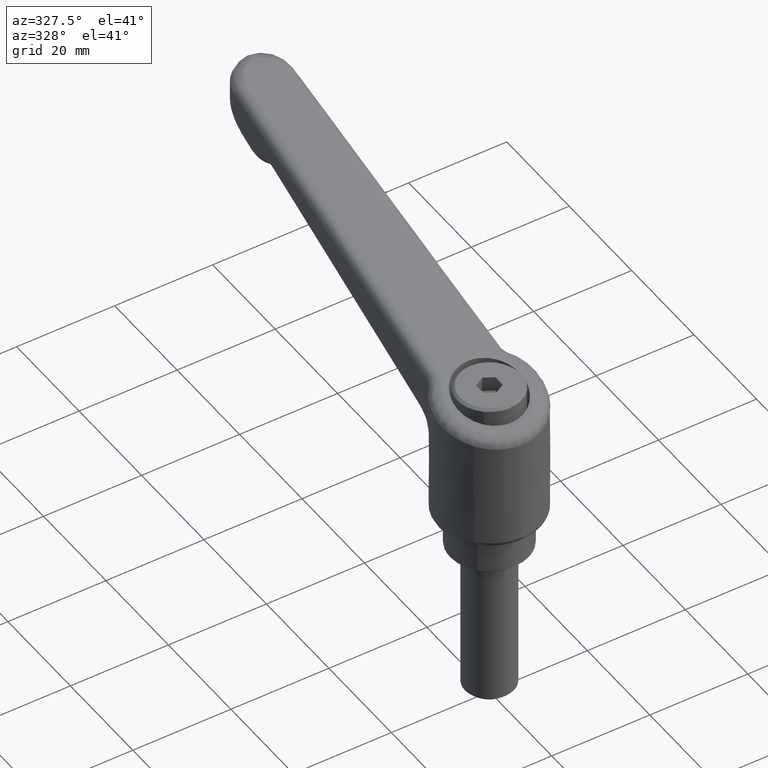
[diagram: clean part render]
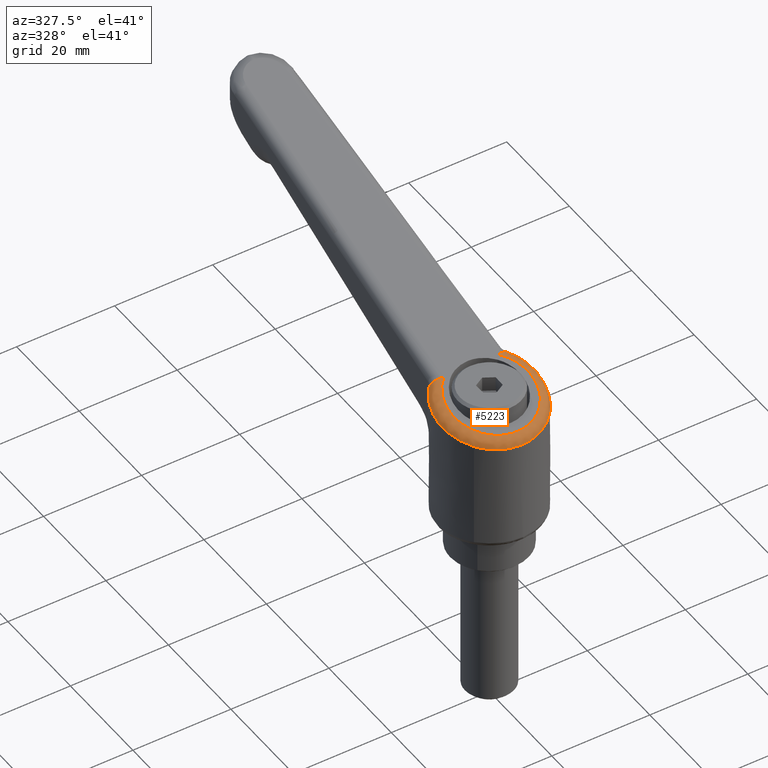
[diagram: same view with one face highlighted and labeled with its STEP entity id]
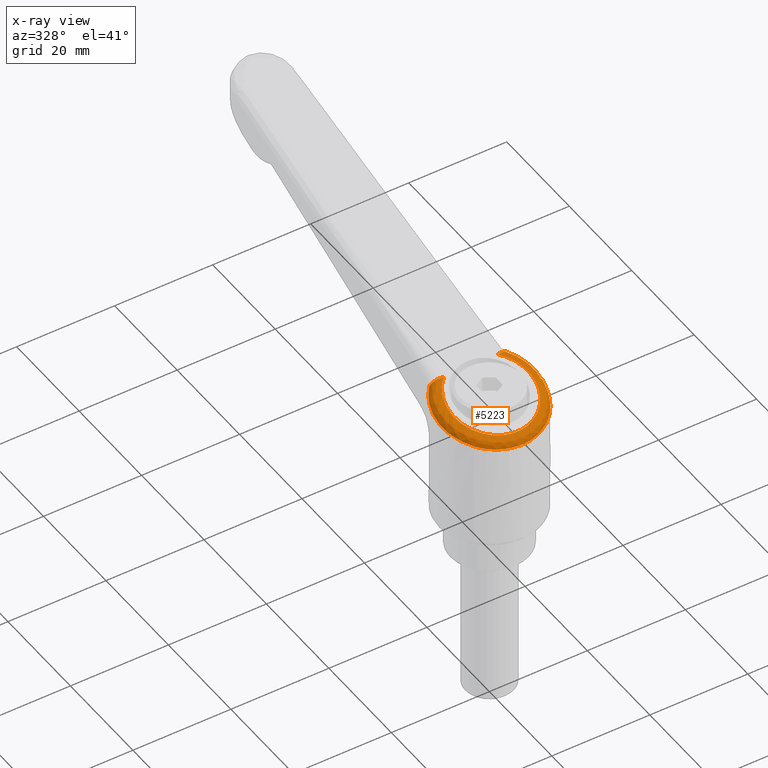
[diagram: x-ray of the same camera — body ghosted, the highlighted face saturated]
A machine part, auxiliary view. The second image highlights one B-rep face of the part: STEP entity #5223.
The next image is the same camera in x-ray: the body ghosted, the highlighted face saturated — about 0% of this face is hidden behind the body in this view.
In plain terms, the highlighted face is a freeform B-spline surface patch.
Its self-contained STEP definition (entity closure, byte-faithful):
#2183=CARTESIAN_POINT('',(-6.823606710889278,-7.980500702030341,22.891820902044099));
#2184=VERTEX_POINT('',#2183);
#2185=CARTESIAN_POINT('',(-7.139260589506565,7.699412849981324,22.822535343776028));
#2186=VERTEX_POINT('',#2185);
#2187=CARTESIAN_POINT('',(-6.823606710889279,-7.980500702030341,22.891820902044099));
#2188=CARTESIAN_POINT('',(-7.235869616191197,-7.628001575240655,22.801316240185322));
#2189=CARTESIAN_POINT('',(-7.609615610990944,-7.234898198714493,22.719267300027379));
#2190=CARTESIAN_POINT('',(-14.488248986314337,-0.000000585499973,21.209192045621776));
#2191=CARTESIAN_POINT('',(-7.609616733089972,7.234897048590815,22.719276806546301));
#2192=CARTESIAN_POINT('',(-7.381753625270392,7.474561882960712,22.769300211494858));
#2193=CARTESIAN_POINT('',(-7.139260589506565,7.699412849981324,22.822535343776028));
#2201=(BOUNDED_CURVE()B_SPLINE_CURVE(2,(#2187,#2188,#2189,#2190,#2191,#2192,#2193),.UNSPECIFIED.,.F.,.U.)B_SPLINE_CURVE_WITH_KNOTS((3,2,2,3),(0.308847889211876,0.333333333333333,0.666666666666667,0.681713560675306),.UNSPECIFIED.)CURVE()GEOMETRIC_REPRESENTATION_ITEM()RATIONAL_B_SPLINE_CURVE((0.962529331508985,0.979779329458571,1.0,0.724725290651227,1.0,0.987573911875510,0.976269667936728))REPRESENTATION_ITEM(''));
#2202=EDGE_CURVE('',#2184,#2186,#2201,.T.);
#2278=CARTESIAN_POINT('',(6.841752169418649,-7.964949921515840,25.891804639626351));
#2279=VERTEX_POINT('',#2278);
#2280=CARTESIAN_POINT('',(6.841752169418646,-7.964949921515839,25.891804639626379));
#2281=CARTESIAN_POINT('',(0.015736291271141,-13.828377740019169,24.393275636013197));
#2282=CARTESIAN_POINT('',(-6.823606710889278,-7.980500702030341,22.891820902044103));
#2290=(BOUNDED_CURVE()B_SPLINE_CURVE(2,(#2280,#2281,#2282),.UNSPECIFIED.,.F.,.U.)B_SPLINE_CURVE_WITH_KNOTS((3,3),(0.0,0.308847889211876),.UNSPECIFIED.)CURVE()GEOMETRIC_REPRESENTATION_ITEM()RATIONAL_B_SPLINE_CURVE((1.0,0.744945961192656,0.962529331508985))REPRESENTATION_ITEM(''));
#2291=EDGE_CURVE('',#2279,#2184,#2290,.T.);
#2351=CARTESIAN_POINT('',(6.841752169418649,7.964949921515840,25.891804639626351));
#2352=VERTEX_POINT('',#2351);
#2353=CARTESIAN_POINT('',(-7.139260589506565,7.699412849981324,22.822535343776028));
#2354=CARTESIAN_POINT('',(-0.267254429061213,14.071460713945985,24.331155404248406));
#2355=CARTESIAN_POINT('',(6.841752169418649,7.964949921515840,25.891804639626351));
#2363=(BOUNDED_CURVE()B_SPLINE_CURVE(2,(#2353,#2354,#2355),.UNSPECIFIED.,.F.,.U.)B_SPLINE_CURVE_WITH_KNOTS((3,3),(0.681713560675306,1.0),.UNSPECIFIED.)CURVE()GEOMETRIC_REPRESENTATION_ITEM()RATIONAL_B_SPLINE_CURVE((0.976269667936728,0.737151378775716,1.0))REPRESENTATION_ITEM(''));
#2364=EDGE_CURVE('',#2186,#2352,#2363,.T.);
#4490=CARTESIAN_POINT('',(6.815699914991670,-7.951187561158349,26.225580680634000));
#4491=VERTEX_POINT('',#4490);
#4500=CARTESIAN_POINT('',(6.841752169418649,-7.964949921515840,25.891804639626351));
#4501=CARTESIAN_POINT('',(6.853782152696591,-7.955134553336465,26.003104471438540));
#4502=CARTESIAN_POINT('',(6.844908609649165,-7.950430373614521,26.117063636672889));
#4503=CARTESIAN_POINT('',(6.815699914991670,-7.951187561158349,26.225580680634000));
#4504=B_SPLINE_CURVE_WITH_KNOTS('',3,(#4500,#4501,#4502,#4503),.UNSPECIFIED.,.F.,.U.,(4,4),(0.000000010436451,0.337115310552801),.UNSPECIFIED.);
#4505=EDGE_CURVE('',#2279,#4491,#4504,.T.);
#4580=CARTESIAN_POINT('',(5.940270675266100,-5.519973294428710,28.072980452360650));
#4581=VERTEX_POINT('',#4580);
#4618=CARTESIAN_POINT('',(6.815699914991670,-7.951187561158349,26.225580680634000));
#4619=CARTESIAN_POINT('',(6.776847164123269,-7.952224039955228,26.369502280352108));
#4620=CARTESIAN_POINT('',(6.735899683152852,-7.934386095575589,26.509252974808110));
#4621=CARTESIAN_POINT('',(6.671571994320859,-7.881070794717561,26.713022534366772));
#4622=CARTESIAN_POINT('',(6.649576278599209,-7.858748446168061,26.780148701766031));
#4623=CARTESIAN_POINT('',(6.604872637264183,-7.805249777314331,26.911581116659139));
#4624=CARTESIAN_POINT('',(6.582540020666011,-7.774548066162674,26.974800264596219));
#4625=CARTESIAN_POINT('',(6.537933703850105,-7.705781252450130,27.096595198035761));
#4626=CARTESIAN_POINT('',(6.515659963317729,-7.667713415129088,27.155169235526351));
#4627=CARTESIAN_POINT('',(6.471197899612150,-7.584456024922666,27.267837078720412));
#4628=CARTESIAN_POINT('',(6.448949981854497,-7.539133377237592,27.322069164379389));
#4629=CARTESIAN_POINT('',(6.382767467545852,-7.393338678804280,27.477178574877421));
#4630=CARTESIAN_POINT('',(6.340532647239538,-7.285762016298755,27.567924787307671));
#4631=CARTESIAN_POINT('',(6.279876199056705,-7.110750715467771,27.687504574675700));
#4632=CARTESIAN_POINT('',(6.260110700337241,-7.050117384920137,27.724581295196700));
#4633=CARTESIAN_POINT('',(6.221505207759942,-6.924369251863543,27.793322550541589));
#4634=CARTESIAN_POINT('',(6.202857041723497,-6.859863055740397,27.824638255258758));
#4635=CARTESIAN_POINT('',(6.149175302800781,-6.663166666854674,27.909498088157680));
#4636=CARTESIAN_POINT('',(6.116210469173950,-6.527234955274309,27.954336881123020));
#4637=CARTESIAN_POINT('',(6.070795398181867,-6.316850520976558,28.005893778653121));
#4638=CARTESIAN_POINT('',(6.056290744144198,-6.245400266583697,28.020476353136370));
#4639=CARTESIAN_POINT('',(6.028931231890466,-6.101986151931793,28.044295752354909));
#4640=CARTESIAN_POINT('',(6.016052820796225,-6.029943516164621,28.053572554525189));
#4641=CARTESIAN_POINT('',(5.991825097841295,-5.885227606704326,28.067226219474119));
#4642=CARTESIAN_POINT('',(5.980476040663701,-5.812554218011097,28.071602138725151));
#4643=CARTESIAN_POINT('',(5.964562484715478,-5.703092606344508,28.074689215042529));
#4644=CARTESIAN_POINT('',(5.959443134309769,-5.666530067408090,28.075138084723509));
#4645=CARTESIAN_POINT('',(5.949570309689786,-5.593257056970700,28.074901289362341));
#4646=CARTESIAN_POINT('',(5.944791668683920,-5.556293143372955,28.074206485211288));
#4647=CARTESIAN_POINT('',(5.940270675266100,-5.519973294428710,28.072980452360650));
#4648=B_SPLINE_CURVE_WITH_KNOTS('',3,(#4618,#4619,#4620,#4621,#4622,#4623,#4624,#4625,#4626,#4627,#4628,#4629,#4630,#4631,#4632,#4633,#4634,#4635,#4636,#4637,#4638,#4639,#4640,#4641,#4642,#4643,#4644,#4645,#4646,#4647),.UNSPECIFIED.,.F.,.U.,(4,2,2,2,2,2,2,2,2,2,2,2,2,2,4),(0.0,0.124999999999996,0.187499999999996,0.249999999999996,0.312499999999995,0.374999999999995,0.499999999999995,0.562499999999996,0.624999999999997,0.749999999999998,0.812499999999998,0.874999999999999,0.937499999999999,0.968750000000000,1.0),.UNSPECIFIED.);
#4649=EDGE_CURVE('',#4491,#4581,#4648,.T.);
#4737=CARTESIAN_POINT('',(6.815699914991621,7.951187561158400,26.225580680633950));
#4738=VERTEX_POINT('',#4737);
#4757=CARTESIAN_POINT('',(6.815699914991621,7.951187561158400,26.225580680633950));
#4758=CARTESIAN_POINT('',(6.844584194028115,7.950518681924687,26.116999662675060));
#4759=CARTESIAN_POINT('',(6.853450797864499,7.955219489020862,26.003124545526578));
#4760=CARTESIAN_POINT('',(6.841752169418649,7.964949921515840,25.891804639626351));
#4761=B_SPLINE_CURVE_WITH_KNOTS('',3,(#4757,#4758,#4759,#4760),.UNSPECIFIED.,.F.,.U.,(4,4),(9.789436E-009,0.337050919251190),.UNSPECIFIED.);
#4762=EDGE_CURVE('',#4738,#2352,#4761,.T.);
#4829=CARTESIAN_POINT('',(5.940270675266040,5.519973294428770,28.072980452360650));
#4830=VERTEX_POINT('',#4829);
#4831=CARTESIAN_POINT('',(5.940270675266060,5.519973294428730,28.072980452360650));
#4832=CARTESIAN_POINT('',(5.944791668684234,5.556293143372976,28.074206485211398));
#4833=CARTESIAN_POINT('',(5.949570309690695,5.593257056970640,28.074901289362579));
#4834=CARTESIAN_POINT('',(5.959443134310202,5.666530067408091,28.075138084723601));
#4835=CARTESIAN_POINT('',(5.964562484715880,5.703092606344514,28.074689215042600));
#4836=CARTESIAN_POINT('',(5.980476040663914,5.812554218011131,28.071602138725190));
#4837=CARTESIAN_POINT('',(5.991825097841465,5.885227606704362,28.067226219474140));
#4838=CARTESIAN_POINT('',(6.016052820796337,6.029943516164671,28.053572554525200));
#4839=CARTESIAN_POINT('',(6.028931231890555,6.101986151931844,28.044295752354909));
#4840=CARTESIAN_POINT('',(6.056290744144259,6.245400266583751,28.020476353136370));
#4841=CARTESIAN_POINT('',(6.070795398181920,6.316850520976605,28.005893778653121));
#4842=CARTESIAN_POINT('',(6.116210469173979,6.527234955274365,27.954336881123020));
#4843=CARTESIAN_POINT('',(6.149175302800795,6.663166666854728,27.909498088157651));
#4844=CARTESIAN_POINT('',(6.202857041723500,6.859863055740454,27.824638255258730));
#4845=CARTESIAN_POINT('',(6.221505207759944,6.924369251863593,27.793322550541561));
#4846=CARTESIAN_POINT('',(6.260110700337241,7.050117384920194,27.724581295196678));
#4847=CARTESIAN_POINT('',(6.279876199056694,7.110750715467829,27.687504574675661));
#4848=CARTESIAN_POINT('',(6.340532647239519,7.285762016298810,27.567924787307639));
#4849=CARTESIAN_POINT('',(6.382767467545826,7.393338678804339,27.477178574877382));
#4850=CARTESIAN_POINT('',(6.448949981854463,7.539133377237647,27.322069164379339));
#4851=CARTESIAN_POINT('',(6.471197899612124,7.584456024922723,27.267837078720358));
#4852=CARTESIAN_POINT('',(6.515659963317700,7.667713415129143,27.155169235526309));
#4853=CARTESIAN_POINT('',(6.537933703850073,7.705781252450183,27.096595198035729));
#4854=CARTESIAN_POINT('',(6.582540020665978,7.774548066162727,26.974800264596180));
#4855=CARTESIAN_POINT('',(6.604872637264151,7.805249777314391,26.911581116659100));
#4856=CARTESIAN_POINT('',(6.649576278599171,7.858748446168113,26.780148701765992));
#4857=CARTESIAN_POINT('',(6.671571994320817,7.881070794717614,26.713022534366729));
#4858=CARTESIAN_POINT('',(6.735899683152808,7.934386095575641,26.509252974808060));
#4859=CARTESIAN_POINT('',(6.776847164123224,7.952224039955278,26.369502280352059));
#4860=CARTESIAN_POINT('',(6.815699914991621,7.951187561158400,26.225580680633950));
#4861=B_SPLINE_CURVE_WITH_KNOTS('',3,(#4831,#4832,#4833,#4834,#4835,#4836,#4837,#4838,#4839,#4840,#4841,#4842,#4843,#4844,#4845,#4846,#4847,#4848,#4849,#4850,#4851,#4852,#4853,#4854,#4855,#4856,#4857,#4858,#4859,#4860),.UNSPECIFIED.,.F.,.U.,(4,2,2,2,2,2,2,2,2,2,2,2,2,2,4),(0.0,0.031250000000000,0.062499999999999,0.124999999999999,0.187499999999998,0.249999999999998,0.374999999999997,0.437499999999996,0.499999999999996,0.624999999999996,0.687499999999997,0.749999999999998,0.812499999999998,0.874999999999999,1.0),.UNSPECIFIED.);
#4862=EDGE_CURVE('',#4830,#4738,#4861,.T.);
#5017=CARTESIAN_POINT('',(6.087272133174312,-5.318859218443690,28.112845278480297));
#5018=CARTESIAN_POINT('',(5.541237982335054,-5.997603447734540,27.964768131570839));
#5019=CARTESIAN_POINT('',(4.889981095822056,-6.591496749224223,27.788155988334374));
#5020=CARTESIAN_POINT('',(3.437714578851642,-7.554168827809096,27.394320763825768));
#5021=CARTESIAN_POINT('',(2.636956425221716,-7.922779287702228,27.177165879700318));
#5022=CARTESIAN_POINT('',(0.961054456567491,-8.399990468944509,26.722683716566571));
#5023=CARTESIAN_POINT('',(0.086160224842652,-8.508531612435252,26.485424121205625));
#5024=CARTESIAN_POINT('',(-1.655665419118739,-8.455255694001551,26.013064340457198));
#5025=CARTESIAN_POINT('',(-2.522343363861690,-8.293455274795473,25.778032892058480));
#5026=CARTESIAN_POINT('',(-4.166116374111649,-7.714614599796692,25.332263672037104));
#5027=CARTESIAN_POINT('',(-4.942975260955446,-7.297664431681922,25.121589948904028));
#5028=CARTESIAN_POINT('',(-6.333915106481561,-6.247690003913069,24.744385696145041));
#5029=CARTESIAN_POINT('',(-6.947797373104655,-5.614821280476622,24.577909049143791));
#5030=CARTESIAN_POINT('',(-7.954914138265920,-4.192533540051497,24.304792473998130));
#5031=CARTESIAN_POINT('',(-8.348005080550003,-3.403321936393172,24.198191476386658));
#5032=CARTESIAN_POINT('',(-8.876448608036396,-1.742621748764200,24.054884670882462));
#5033=CARTESIAN_POINT('',(-9.011725910477443,-0.871373950045302,24.018199278666067));
#5034=CARTESIAN_POINT('',(-9.011725910477443,0.871373950045256,24.018199278666067));
#5035=CARTESIAN_POINT('',(-8.876448608037132,1.742621748764326,24.054884670882252));
#5036=CARTESIAN_POINT('',(-8.348005080549310,3.403321936392912,24.198191476386850));
#5037=CARTESIAN_POINT('',(-7.954914138264846,4.192533540051848,24.304792473998390));
#5038=CARTESIAN_POINT('',(-6.947797373105783,5.614821280476194,24.577909049143518));
#5039=CARTESIAN_POINT('',(-6.333915106481607,6.247690003913013,24.744385696144992));
#5040=CARTESIAN_POINT('',(-4.942975260955507,7.297664431681889,25.121589948904035));
#5041=CARTESIAN_POINT('',(-4.166116374111583,7.714614599796641,25.332263672037161));
#5042=CARTESIAN_POINT('',(-2.522343363861994,8.293455274795452,25.778032892058398));
#5043=CARTESIAN_POINT('',(-1.655665419118812,8.455255694001547,26.013064340457166));
#5044=CARTESIAN_POINT('',(0.086160224842570,8.508531612435247,26.485424121205615));
#5045=CARTESIAN_POINT('',(0.961054456567116,8.399990468944827,26.722683716566483));
#5046=CARTESIAN_POINT('',(2.636956425221976,7.922779287701945,27.177165879700379));
#5047=CARTESIAN_POINT('',(3.437714578852154,7.554168827808967,27.394320763825895));
#5048=CARTESIAN_POINT('',(4.889981095821498,6.591496749224385,27.788155988334239));
#5049=CARTESIAN_POINT('',(5.541237982335204,5.997603447734476,27.964768131570882));
#5050=CARTESIAN_POINT('',(6.087272133174254,5.318859218443771,28.112845278480304));
#5051=CARTESIAN_POINT('',(6.093009679348833,-5.323815653004942,28.114401224141368));
#5052=CARTESIAN_POINT('',(5.546434388338167,-6.003146659889076,27.966177327266621));
#5053=CARTESIAN_POINT('',(4.894556475300028,-6.597510038120559,27.789396769955992));
#5054=CARTESIAN_POINT('',(3.440971711902281,-7.560882559730302,27.395204054675784));
#5055=CARTESIAN_POINT('',(2.639513618497773,-7.929717650485276,27.177859356260022));
#5056=CARTESIAN_POINT('',(0.962212324116656,-8.407146365661602,26.722997714734856));
#5057=CARTESIAN_POINT('',(0.086619230229655,-8.515674530976956,26.485548597317656));
#5058=CARTESIAN_POINT('',(-1.656545866143524,-8.462168809407489,26.012825575018731));
#5059=CARTESIAN_POINT('',(-2.523860899321239,-8.300147242559133,25.777621356771110));
#5060=CARTESIAN_POINT('',(-4.168808027056232,-7.720696730283811,25.331533731816553));
#5061=CARTESIAN_POINT('',(-4.946199135323719,-7.303356123236049,25.120715677363137));
#5062=CARTESIAN_POINT('',(-6.338074086965078,-6.252472887463024,24.743257836352544));
#5063=CARTESIAN_POINT('',(-6.952354595240910,-5.619086544213309,24.576673191550025));
#5064=CARTESIAN_POINT('',(-7.960118865175093,-4.195676407671290,24.303381021784070));
#5065=CARTESIAN_POINT('',(-8.353455557397910,-3.405862671344627,24.196713380081352));
#5066=CARTESIAN_POINT('',(-8.882229708658860,-1.743912322799472,24.053316913838589));
#5067=CARTESIAN_POINT('',(-9.017590021056391,-0.872020275641043,24.016609010434003));
#5068=CARTESIAN_POINT('',(-9.017590021056391,0.872020275640998,24.016609010434003));
#5069=CARTESIAN_POINT('',(-8.882229708659589,1.743912322799595,24.053316913838373));
#5070=CARTESIAN_POINT('',(-8.353455557397217,3.405862671344368,24.196713380081523));
#5071=CARTESIAN_POINT('',(-7.960118865174024,4.195676407671640,24.303381021784354));
#5072=CARTESIAN_POINT('',(-6.952354595242035,5.619086544212881,24.576673191549730));
#5073=CARTESIAN_POINT('',(-6.338074086965129,6.252472887462975,24.743257836352516));
#5074=CARTESIAN_POINT('',(-4.946199135323774,7.303356123236006,25.120715677363112));
#5075=CARTESIAN_POINT('',(-4.168808027056162,7.720696730283761,25.331533731816574));
#5076=CARTESIAN_POINT('',(-2.523860899321539,8.300147242559094,25.777621356771011));
#5077=CARTESIAN_POINT('',(-1.656545866143600,8.462168809407491,26.012825575018720));
#5078=CARTESIAN_POINT('',(0.086619230229574,8.515674530976948,26.485548597317624));
#5079=CARTESIAN_POINT('',(0.962212324116278,8.407146365661919,26.722997714734763));
#5080=CARTESIAN_POINT('',(2.639513618498040,7.929717650485000,27.177859356260118));
#5081=CARTESIAN_POINT('',(3.440971711902797,7.560882559730175,27.395204054675936));
#5082=CARTESIAN_POINT('',(4.894556475299464,6.597510038120719,27.789396769955840));
#5083=CARTESIAN_POINT('',(5.546434388338322,6.003146659889011,27.966177327266674));
#5084=CARTESIAN_POINT('',(6.093009679348771,5.323815653005019,28.114401224141350));
#5085=CARTESIAN_POINT('',(7.921974900712178,-6.903784887021387,28.610392090939538));
#5086=CARTESIAN_POINT('',(7.185452466226240,-7.751552178128264,28.410657073326945));
#5087=CARTESIAN_POINT('',(6.320020016390012,-8.470955535927416,28.175963386465529));
#5088=CARTESIAN_POINT('',(4.429336402305293,-9.598139088275161,27.663235318353195));
#5089=CARTESIAN_POINT('',(3.404708985538741,-10.005901373533685,27.385370089069976));
#5090=CARTESIAN_POINT('',(1.299106839280806,-10.489234560298657,26.814358994131332));
#5091=CARTESIAN_POINT('',(0.218310467803732,-10.565018197268790,26.521261496781324));
#5092=CARTESIAN_POINT('',(-1.902462662981218,-10.393064307872100,25.946136234074437));
#5093=CARTESIAN_POINT('',(-2.942321491891410,-10.145458189475852,25.664140449858312));
#5094=CARTESIAN_POINT('',(-4.893800949133095,-9.358909993693699,25.134925363521315));
#5095=CARTESIAN_POINT('',(-5.805294608306088,-8.820073553630666,24.887740493731229));
#5096=CARTESIAN_POINT('',(-7.425862890459417,-7.503444656789224,24.448264085110100));
#5097=CARTESIAN_POINT('',(-8.134804506649683,-6.725782811541864,24.256008615946126));
#5098=CARTESIAN_POINT('',(-9.293275851877384,-5.000701531703042,23.941846706264435));
#5099=CARTESIAN_POINT('',(-9.742694760609030,-4.053455294527199,23.819970318735315));
#5100=CARTESIAN_POINT('',(-10.346088096584573,-2.070704356037967,23.656338129214841));
#5101=CARTESIAN_POINT('',(-10.500000000000002,-1.035407288876002,23.614599282846953));
#5102=CARTESIAN_POINT('',(-10.500000000000002,1.035407288875948,23.614599282846953));
#5103=CARTESIAN_POINT('',(-10.346088096583834,2.070704356037507,23.656338129216355));
#5104=CARTESIAN_POINT('',(-9.742694760609812,4.053455294527498,23.819970318733805));
#5105=CARTESIAN_POINT('',(-9.293275851875888,5.000701531702227,23.941846706267494));
#5106=CARTESIAN_POINT('',(-8.134804506651250,6.725782811542582,24.256008615943049));
#5107=CARTESIAN_POINT('',(-7.425862890460256,7.503444656790721,24.448264085111639));
#5108=CARTESIAN_POINT('',(-5.805294608305378,8.820073553629063,24.887740493729659));
#5109=CARTESIAN_POINT('',(-4.893800949133619,9.358909993695987,25.134925363519717));
#5110=CARTESIAN_POINT('',(-2.942321491891157,10.145458189473452,25.664140449859850));
#5111=CARTESIAN_POINT('',(-1.902462662981605,10.393064307872095,25.946136234074416));
#5112=CARTESIAN_POINT('',(0.218310467803928,10.565018197268783,26.521261496781307));
#5113=CARTESIAN_POINT('',(1.299106839279755,10.489234560300559,26.814358994130650));
#5114=CARTESIAN_POINT('',(3.404708985539649,10.005901373531819,27.385370089070637));
#5115=CARTESIAN_POINT('',(4.429336402306480,9.598139088273335,27.663235318352754));
#5116=CARTESIAN_POINT('',(6.320020016388761,8.470955535929280,28.175963386465966));
#5117=CARTESIAN_POINT('',(7.185452466226708,7.751552178126577,28.410657073325520));
#5118=CARTESIAN_POINT('',(7.921974900712097,6.903784887021485,28.610392090939516));
#5119=CARTESIAN_POINT('',(8.181221319828982,-6.581612218963818,26.178047493651540));
#5120=CARTESIAN_POINT('',(7.505566790590287,-7.421481609935048,26.029757850302797));
#5121=CARTESIAN_POINT('',(6.699742978707557,-8.156309560575288,25.852901643724493));
#5122=CARTESIAN_POINT('',(4.902844870779523,-9.347408756796675,25.458542272081001));
#5123=CARTESIAN_POINT('',(3.912075553438372,-9.803456033194417,25.241107383902776));
#5124=CARTESIAN_POINT('',(1.838538671386085,-10.393837642692700,24.786061161395917));
#5125=CARTESIAN_POINT('',(0.756077863124630,-10.528084052802226,24.548517680806821));
#5126=CARTESIAN_POINT('',(-1.398975194563702,-10.462078135039144,24.075610575315324));
#5127=CARTESIAN_POINT('',(-2.471247798719502,-10.261833985823454,23.840316654244848));
#5128=CARTESIAN_POINT('',(-4.504959910427480,-9.545556197882513,23.394061744483597));
#5129=CARTESIAN_POINT('',(-5.466096133052503,-9.029627011140768,23.183166118884120));
#5130=CARTESIAN_POINT('',(-7.186987819242848,-7.730432174854028,22.805571119396429));
#5131=CARTESIAN_POINT('',(-7.946485067529926,-6.947358599413168,22.638926894495722));
#5132=CARTESIAN_POINT('',(-9.192503501916324,-5.187513804617357,22.365537728392781));
#5133=CARTESIAN_POINT('',(-9.678836734580880,-4.211004875383559,22.258832675158615));
#5134=CARTESIAN_POINT('',(-10.332634466320268,-2.156179394901450,22.115386047963735));
#5135=CARTESIAN_POINT('',(-10.500000000000004,-1.078170552713548,22.078665397515611));
#5136=CARTESIAN_POINT('',(-10.500000000000012,1.078170552713492,22.078665397515611));
#5137=CARTESIAN_POINT('',(-10.332634466320309,2.156179394901317,22.115386047963710));
#5138=CARTESIAN_POINT('',(-9.678836734580894,4.211004875383521,22.258832675158597));
#5139=CARTESIAN_POINT('',(-9.192503501916105,5.187513804617672,22.365537728394305));
#5140=CARTESIAN_POINT('',(-7.946485067530221,6.947358599412762,22.638926894494201));
#5141=CARTESIAN_POINT('',(-7.186987819242905,7.730432174853958,22.805571119396404));
#5142=CARTESIAN_POINT('',(-5.466096133052578,9.029627011140724,23.183166118884106));
#5143=CARTESIAN_POINT('',(-4.504959910427369,9.545556197882526,23.394061744483562));
#5144=CARTESIAN_POINT('',(-2.471247798719900,10.261833985823346,23.840316654244816));
#5145=CARTESIAN_POINT('',(-1.398975194563818,10.462078135039123,24.075610575315295));
#5146=CARTESIAN_POINT('',(0.756077863124554,10.528084052802228,24.548517680806796));
#5147=CARTESIAN_POINT('',(1.838538671385596,10.393837642692828,24.786061161395697));
#5148=CARTESIAN_POINT('',(3.912075553438721,9.803456033194333,25.241107383902957));
#5149=CARTESIAN_POINT('',(4.902844870780071,9.347408756796314,25.458542272081022));
#5150=CARTESIAN_POINT('',(6.699742978706949,8.156309560575684,25.852901643724454));
#5151=CARTESIAN_POINT('',(7.505566790590413,7.421481609934869,26.029757850302957));
#5152=CARTESIAN_POINT('',(8.181221319828907,6.581612218963914,26.178047493651523));
#5153=CARTESIAN_POINT('',(8.182032073228299,-6.580604673375779,26.170440709120868));
#5154=CARTESIAN_POINT('',(7.506578555506461,-7.420438376954373,26.022232694071178));
#5155=CARTESIAN_POINT('',(6.700958025311170,-8.155302748868767,25.845468255279158));
#5156=CARTESIAN_POINT('',(4.904400481282602,-9.346585036075602,25.451299225995932));
#5157=CARTESIAN_POINT('',(3.913765868969910,-9.802781577042362,25.233963672070796));
#5158=CARTESIAN_POINT('',(1.840386901193314,-10.393510788739814,24.779111700334685));
#5159=CARTESIAN_POINT('',(0.757946434525294,-10.527955718346355,24.541663020767093));
#5160=CARTESIAN_POINT('',(-1.397178154442541,-10.462324458183444,24.068934322444502));
#5161=CARTESIAN_POINT('',(-2.469544749967298,-10.262254713318178,23.833723076882372));
#5162=CARTESIAN_POINT('',(-4.503520743718894,-9.546247007176314,23.387618512634802));
#5163=CARTESIAN_POINT('',(-5.464827184027211,-9.030410955276881,23.176789268310479));
#5164=CARTESIAN_POINT('',(-7.186077347349874,-7.731297337360098,22.799309998190083));
#5165=CARTESIAN_POINT('',(-7.945761521891154,-6.948209919891411,22.632713874572932));
#5166=CARTESIAN_POINT('',(-9.192111298620917,-5.188240872995631,22.359402775938580));
#5167=CARTESIAN_POINT('',(-9.678586972729677,-4.211621084142540,22.252726745300052));
#5168=CARTESIAN_POINT('',(-10.332581499484695,-2.156515909451121,22.109319331848937));
#5169=CARTESIAN_POINT('',(-10.499999999999995,-1.078339191599554,22.072608372018546));
#5170=CARTESIAN_POINT('',(-10.500000000000004,1.078339191599498,22.072608372018546));
#5171=CARTESIAN_POINT('',(-10.332581499484736,2.156515909450990,22.109319331848912));
#5172=CARTESIAN_POINT('',(-9.678586972729693,4.211621084142505,22.252726745300055));
#5173=CARTESIAN_POINT('',(-9.192111298620695,5.188240872995947,22.359402775940072));
#5174=CARTESIAN_POINT('',(-7.945761521891434,6.948209919890992,22.632713874571394));
#5175=CARTESIAN_POINT('',(-7.186077347349934,7.731297337360027,22.799309998190054));
#5176=CARTESIAN_POINT('',(-5.464827184027291,9.030410955276849,23.176789268310472));
#5177=CARTESIAN_POINT('',(-4.503520743718786,9.546247007176326,23.387618512634798));
#5178=CARTESIAN_POINT('',(-2.469544749967699,10.262254713318081,23.833723076882325));
#5179=CARTESIAN_POINT('',(-1.397178154442657,10.462324458183421,24.068934322444470));
#5180=CARTESIAN_POINT('',(0.757946434525219,10.527955718346366,24.541663020767075));
#5181=CARTESIAN_POINT('',(1.840386901192826,10.393510788739931,24.779111700334479));
#5182=CARTESIAN_POINT('',(3.913765868970257,9.802781577042286,25.233963672070967));
#5183=CARTESIAN_POINT('',(4.904400481283149,9.346585036075249,25.451299225995960));
#5184=CARTESIAN_POINT('',(6.700958025310571,8.155302748869170,25.845468255279147));
#5185=CARTESIAN_POINT('',(7.506578555506597,7.420438376954208,26.022232694071366));
#5186=CARTESIAN_POINT('',(8.182032073228225,6.580604673375873,26.170440709120847));
#5194=(BOUNDED_SURFACE()B_SPLINE_SURFACE(3,2,((#5017,#5051,#5085,#5119,#5153),(#5018,#5052,#5086,#5120,#5154),(#5019,#5053,#5087,#5121,#5155),(#5020,#5054,#5088,#5122,#5156),(#5021,#5055,#5089,#5123,#5157),(#5022,#5056,#5090,#5124,#5158),(#5023,#5057,#5091,#5125,#5159),(#5024,#5058,#5092,#5126,#5160),(#5025,#5059,#5093,#5127,#5161),(#5026,#5060,#5094,#5128,#5162),(#5027,#5061,#5095,#5129,#5163),(#5028,#5062,#5096,#5130,#5164),(#5029,#5063,#5097,#5131,#5165),(#5030,#5064,#5098,#5132,#5166),(#5031,#5065,#5099,#5133,#5167),(#5032,#5066,#5100,#5134,#5168),(#5033,#5067,#5101,#5135,#5169),(#5034,#5068,#5102,#5136,#5170),(#5035,#5069,#5103,#5137,#5171),(#5036,#5070,#5104,#5138,#5172),(#5037,#5071,#5105,#5139,#5173),(#5038,#5072,#5106,#5140,#5174),(#5039,#5073,#5107,#5141,#5175),(#5040,#5074,#5108,#5142,#5176),(#5041,#5075,#5109,#5143,#5177),(#5042,#5076,#5110,#5144,#5178),(#5043,#5077,#5111,#5145,#5179),(#5044,#5078,#5112,#5146,#5180),(#5045,#5079,#5113,#5147,#5181),(#5046,#5080,#5114,#5148,#5182),(#5047,#5081,#5115,#5149,#5183),(#5048,#5082,#5116,#5150,#5184),(#5049,#5083,#5117,#5151,#5185),(#5050,#5084,#5118,#5152,#5186)),.UNSPECIFIED.,.F.,.F.,.U.)B_SPLINE_SURFACE_WITH_KNOTS((4,2,2,2,2,2,2,2,2,2,2,2,2,2,2,2,4),(3,1,1,3),(0.0,3.310586864433216,6.621173728866421,9.931760593299636,13.242347457732849,16.552934322166060,19.863521186599272,23.174108051032491,26.484694915465699,29.795281779898900,33.105868644332112,36.416455508765331,39.727042373198543,43.037629237631741,46.348216102064953,49.658802966498172,52.969389830931377),(0.0,0.019088709665315,3.824865338431332,3.843894518796309),.UNSPECIFIED.)GEOMETRIC_REPRESENTATION_ITEM()RATIONAL_B_SPLINE_SURFACE(((1.003702534253673,1.001851267126836,0.630906997463633,1.001845493837875,1.003690987675750),(1.003635590344531,1.001817795172266,0.637580407277984,1.001812126267627,1.003624252535255),(1.003556797057453,1.001778398528726,0.645435041135515,1.001772852484913,1.003545704969827),(1.003385005263633,1.001692502631817,0.662560378714504,1.001687224459575,1.003374448919149),(1.003292036683169,1.001646018341585,0.671828099187599,1.001640885133424,1.003281770266849),(1.003101766114944,1.001550883057472,0.690795522716764,1.001546046534473,1.003092093068946),(1.003004493579919,1.001502246789959,0.700492289730071,1.001497561942114,1.002995123884229),(1.002814740769365,1.001407370384683,0.719408099764078,1.001402981414669,1.002805962829338),(1.002722274359727,1.001361137179863,0.728625760541533,1.001356892390907,1.002713784781814),(1.002549846127217,1.001274923063608,0.745814542521304,1.001270947138609,1.002541894277219),(1.002469889190291,1.001234944595145,0.753785176660442,1.001231093345428,1.002462186690856),(1.002328522509562,1.001164261254781,0.767877538560118,1.001160630435353,1.002321260870707),(1.002267113591914,1.001133556795957,0.773999183964171,1.001130021730249,1.002260043460497),(1.002167147199970,1.001083573599985,0.783964492379281,1.001080194409909,1.002160388819817),(1.002128589255057,1.001064294627528,0.787808202304613,1.001060975560098,1.002121951120197),(1.002076894504286,1.001038447252143,0.792961475568269,1.001035208791323,1.002070417582646),(1.002063757223625,1.001031878611813,0.794271086238181,1.001028660635696,1.002057321271393),(1.002063757223625,1.001031878611813,0.794271086238181,1.001028660635696,1.002057321271393),(1.002076894504283,1.001038447252142,0.792961475568561,1.001035208791322,1.002070417582643),(1.002128589255060,1.001064294627530,0.787808202304321,1.001060975560100,1.002121951120200),(1.002167147199969,1.001083573599984,0.783964492379428,1.001080194409908,1.002160388819816),(1.002267113591915,1.001133556795958,0.773999183964024,1.001130021730249,1.002260043460499),(1.002328522509566,1.001164261254783,0.767877538559821,1.001160630435355,1.002321260870710),(1.002469889190288,1.001234944595144,0.753785176660740,1.001231093345427,1.002462186690853),(1.002549846127218,1.001274923063609,0.745814542521156,1.001270947138610,1.002541894277220),(1.002722274359725,1.001361137179863,0.728625760541685,1.001356892390906,1.002713784781812),(1.002814740769368,1.001407370384684,0.719408099763827,1.001402981414671,1.002805962829341),(1.003004493579916,1.001502246789958,0.700492289730322,1.001497561942113,1.002995123884226),(1.003101766114948,1.001550883057474,0.690795522716338,1.001546046534475,1.003092093068950),(1.003292036683165,1.001646018341582,0.671828099188026,1.001640885133422,1.003281770266845),(1.003385005263632,1.001692502631816,0.662560378714670,1.001687224459574,1.003374448919147),(1.003556797057454,1.001778398528727,0.645435041135350,1.001772852484914,1.003545704969828),(1.003635590344530,1.001817795172265,0.637580407278110,1.001812126267627,1.003624252535253),(1.003702534253672,1.001851267126836,0.630906997463634,1.001845493837875,1.003690987675750)))REPRESENTATION_ITEM('')SURFACE());
#5195=ORIENTED_EDGE('',*,*,#2364,.F.);
#5196=ORIENTED_EDGE('',*,*,#2202,.F.);
#5197=ORIENTED_EDGE('',*,*,#2291,.F.);
#5198=ORIENTED_EDGE('',*,*,#4505,.T.);
#5199=ORIENTED_EDGE('',*,*,#4649,.T.);
#5200=CARTESIAN_POINT('',(5.940270675266040,5.519973294428770,28.072980452360650));
#5201=CARTESIAN_POINT('',(2.092957256438765,10.025071493159286,27.029640592663412));
#5202=CARTESIAN_POINT('',(-3.465254488648613,7.974702619111119,25.522328026468902));
#5203=CARTESIAN_POINT('',(-9.023466233735919,5.924333745062977,24.015015460274405));
#5204=CARTESIAN_POINT('',(-9.023466233735919,-9.606188E-014,24.015015460274409));
#5205=CARTESIAN_POINT('',(-9.023466233735919,-5.924333745063118,24.015015460274405));
#5206=CARTESIAN_POINT('',(-3.465254488648433,-7.974702619111184,25.522328026468951));
#5207=CARTESIAN_POINT('',(2.092957256438992,-10.025071493159230,27.029640592663473));
#5208=CARTESIAN_POINT('',(5.940270675266100,-5.519973294428710,28.072980452360650));
#5216=(BOUNDED_CURVE()B_SPLINE_CURVE(2,(#5200,#5201,#5202,#5203,#5204,#5205,#5206,#5207,#5208),.UNSPECIFIED.,.F.,.U.)B_SPLINE_CURVE_WITH_KNOTS((3,2,2,2,3),(0.0,0.250000000000000,0.500000000000000,0.750000000000000,1.0),.UNSPECIFIED.)CURVE()GEOMETRIC_REPRESENTATION_ITEM()RATIONAL_B_SPLINE_CURVE((1.0,0.820394032118735,1.0,0.820394032118735,1.0,0.820394032118735,1.0,0.820394032118735,1.0))REPRESENTATION_ITEM(''));
#5217=EDGE_CURVE('',#4830,#4581,#5216,.T.);
#5218=ORIENTED_EDGE('',*,*,#5217,.F.);
#5219=ORIENTED_EDGE('',*,*,#4862,.T.);
#5220=ORIENTED_EDGE('',*,*,#4762,.T.);
#5221=EDGE_LOOP('',(#5195,#5196,#5197,#5198,#5199,#5218,#5219,#5220));
#5222=FACE_OUTER_BOUND('',#5221,.T.);
#5223=ADVANCED_FACE('',(#5222),#5194,.T.);